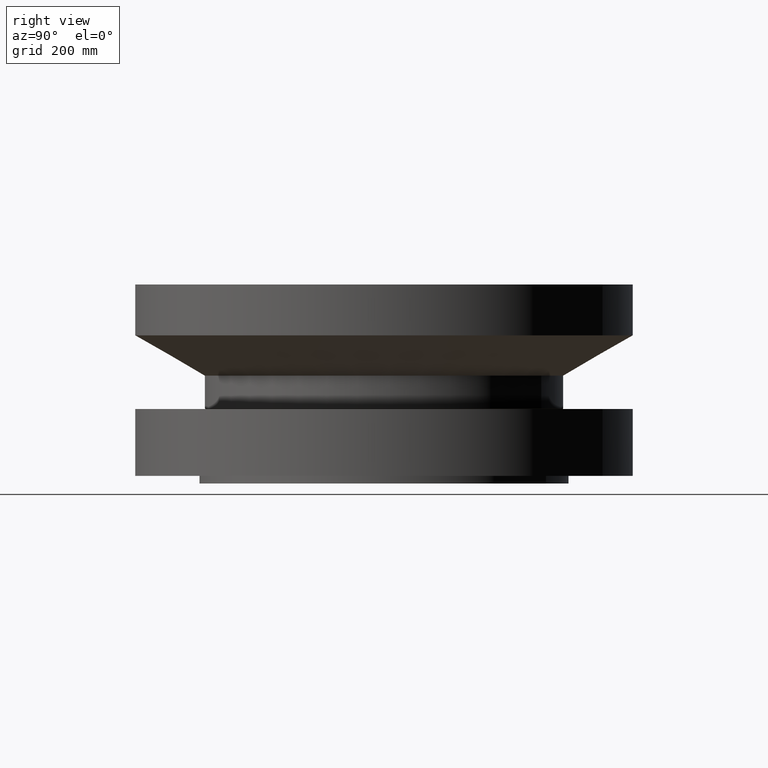
[diagram: clean part render]
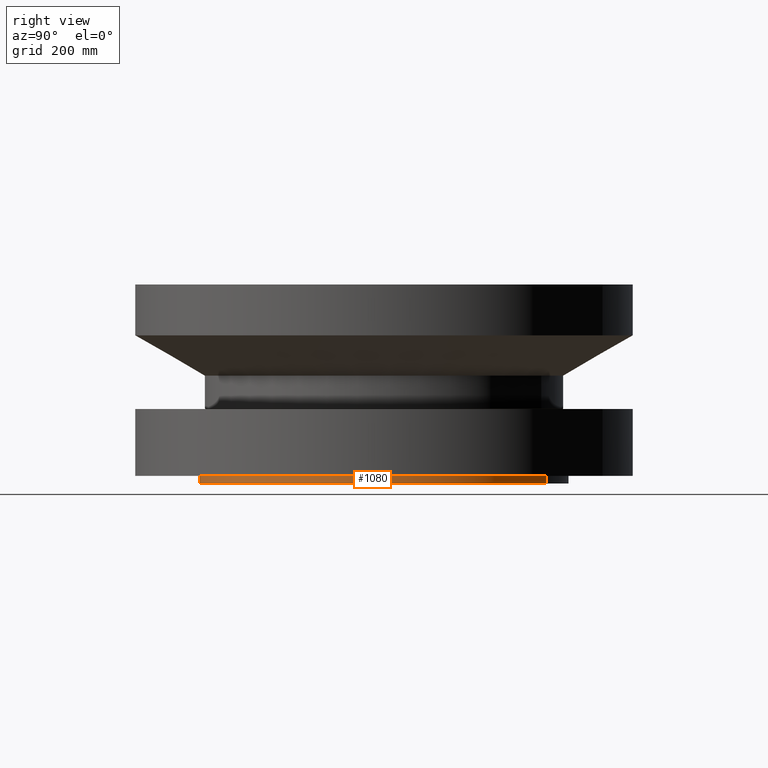
[diagram: same view with one face highlighted and labeled with its STEP entity id]
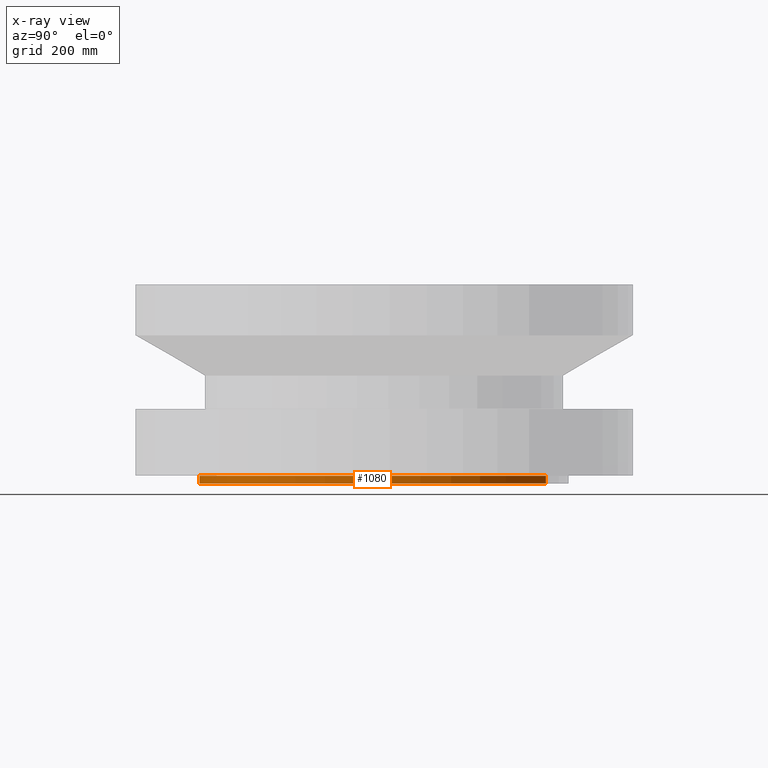
[diagram: x-ray of the same camera — body ghosted, the highlighted face saturated]
A machine part, right view. The second image highlights one B-rep face of the part: STEP entity #1080.
The next image is the same camera in x-ray: the body ghosted, the highlighted face saturated — about 0% of this face is hidden behind the body in this view.
In plain terms, the highlighted cylindrical surface (partial cylindrical patch) has radius 385.762 mm, axis along (0, 0, -1).
Its self-contained STEP definition (entity closure, byte-faithful):
#109=AXIS2_PLACEMENT_3D('Circle Axis2P3D',#107,#108,$) ;
#1040=AXIS2_PLACEMENT_3D('Circle Axis2P3D',#1038,#1039,$) ;
#1055=AXIS2_PLACEMENT_3D('Cylinder Axis2P3D',#1052,#1053,#1054) ;
#107=CARTESIAN_POINT('Axis2P3D Location',(0.,0.,0.)) ;
#111=CARTESIAN_POINT('Vertex',(7.28127536758,13.3282851588,2.23792987641E-015)) ;
#113=CARTESIAN_POINT('Vertex',(-7.28127536758,-13.3282851588,2.23792987641E-015)) ;
#1033=CARTESIAN_POINT('Vertex',(-7.28127536758,-13.3282851588,-0.625000000002)) ;
#1035=CARTESIAN_POINT('Vertex',(7.28127536758,13.3282851588,-0.625000000002)) ;
#1038=CARTESIAN_POINT('Axis2P3D Location',(0.,0.,-0.625000000003)) ;
#1052=CARTESIAN_POINT('Axis2P3D Location',(0.,0.,7.56250000003)) ;
#1057=CARTESIAN_POINT('Line Origine',(-7.28127536758,-13.3282851588,-0.312500000001)) ;
#1062=CARTESIAN_POINT('Line Origine',(7.28127536758,13.3282851588,-0.312500000001)) ;
#108=DIRECTION('Axis2P3D Direction',(0.,0.,-0.0393700787402)) ;
#1039=DIRECTION('Axis2P3D Direction',(0.,0.,-0.0393700787402)) ;
#1053=DIRECTION('Axis2P3D Direction',(0.,0.,-0.0393700787402)) ;
#1054=DIRECTION('Axis2P3D XDirection',(0.0188750212049,0.0345504945626,0.)) ;
#1058=DIRECTION('Vector Direction',(0.,0.,-0.0393700787402)) ;
#1063=DIRECTION('Vector Direction',(0.,0.,-0.0393700787402)) ;
#1059=VECTOR('Line Direction',#1058,0.0393700787402) ;
#1064=VECTOR('Line Direction',#1063,0.0393700787402) ;
#1075=ORIENTED_EDGE('',*,*,#1042,.F.) ;
#1076=ORIENTED_EDGE('',*,*,#1066,.T.) ;
#1077=ORIENTED_EDGE('',*,*,#115,.T.) ;
#1078=ORIENTED_EDGE('',*,*,#1061,.F.) ;
#1080=ADVANCED_FACE('PartBody',(#1079),#1056,.T.) ;
#110=CIRCLE('generated circle',#109,15.1875000001) ;
#1041=CIRCLE('generated circle',#1040,15.1875000001) ;
#1056=CYLINDRICAL_SURFACE('generated cylinder',#1055,15.1875000001) ;
#115=EDGE_CURVE('',#112,#114,#110,.T.) ;
#1042=EDGE_CURVE('',#1036,#1034,#1041,.T.) ;
#1061=EDGE_CURVE('',#1034,#114,#1060,.F.) ;
#1066=EDGE_CURVE('',#1036,#112,#1065,.F.) ;
#1074=EDGE_LOOP('',(#1075,#1076,#1077,#1078)) ;
#1079=FACE_OUTER_BOUND('',#1074,.T.) ;
#1060=LINE('Line',#1057,#1059) ;
#1065=LINE('Line',#1062,#1064) ;
#112=VERTEX_POINT('',#111) ;
#114=VERTEX_POINT('',#113) ;
#1034=VERTEX_POINT('',#1033) ;
#1036=VERTEX_POINT('',#1035) ;